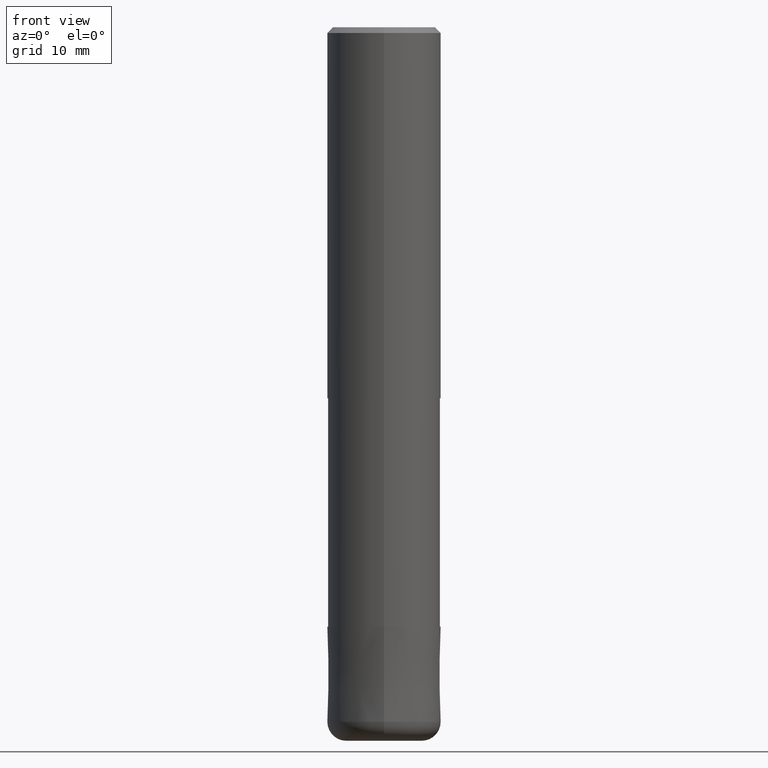
[diagram: clean part render]
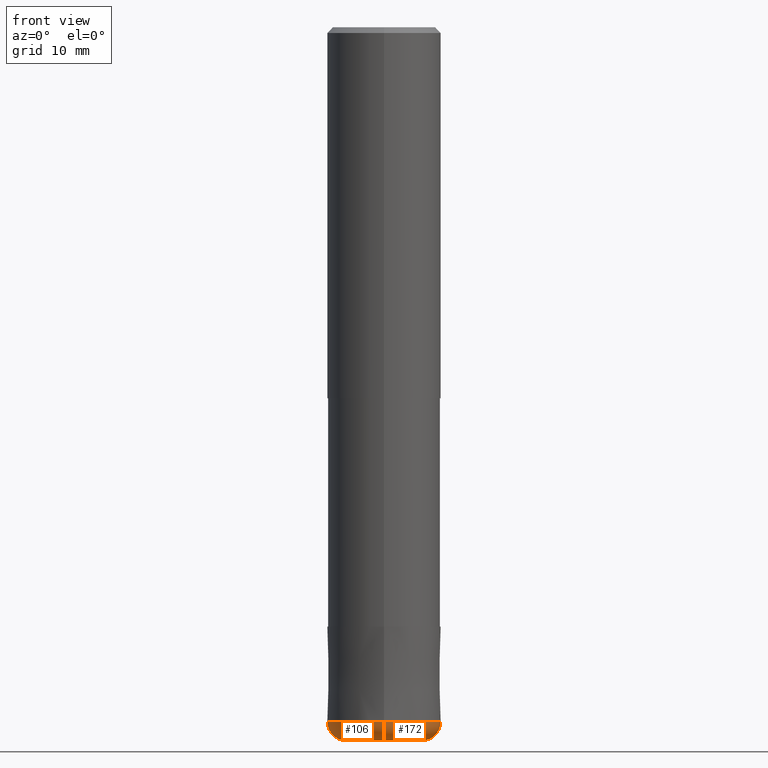
[diagram: same view with one multi-face feature highlighted, each face labeled with its STEP entity id]
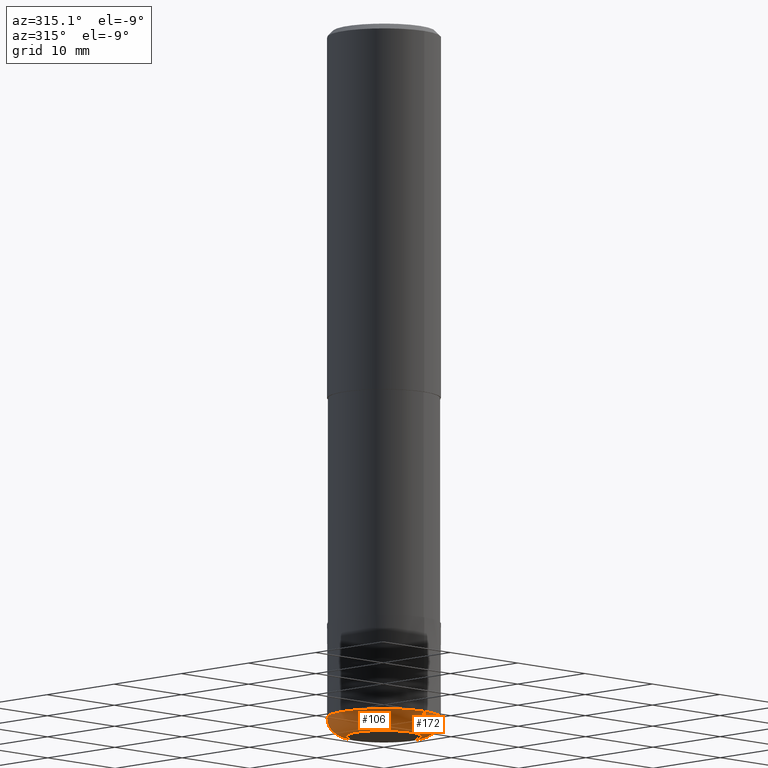
[diagram: same view with one multi-face feature highlighted, each face labeled with its STEP entity id]
A machine part, front view. The highlighted faces form ONE feature: a constant-radius fillet chain: 2 tangent blend faces with common blend radius 2 mm. The faces share edges in the B-rep.
A second angle (auxiliary view) of the same feature is appended — it is thin or edge-on in the first view.
Their STEP definitions:
[1] entity #172 (Torus):
#94=EDGE_CURVE('',#182,#202,#232,.T.);
#96=EDGE_CURVE('',#116,#174,#234,.T.);
#104=EDGE_CURVE('',#202,#174,#243,.T.);
#116=VERTEX_POINT('',#257);
#172=ADVANCED_FACE('',(#321),#322,.T.);
#174=VERTEX_POINT('',#324);
#182=VERTEX_POINT('',#334);
#202=VERTEX_POINT('',#355);
#208=EDGE_CURVE('',#116,#182,#361,.T.);
#232=CIRCLE('',#378,6.0);
#234=CIRCLE('',#381,4.0);
#243=CIRCLE('',#391,2.0);
#257=CARTESIAN_POINT('',(0.0,4.0,-75.0));
#321=FACE_OUTER_BOUND('',#489,.T.);
#322=TOROIDAL_SURFACE('',#490,4.0,2.0);
#324=CARTESIAN_POINT('',(4.89842541528951E-016,-4.0,-75.0));
#334=CARTESIAN_POINT('',(0.0,6.0,-73.0));
#355=CARTESIAN_POINT('',(7.34763812293427E-016,-6.0,-73.0));
#361=CIRCLE('',#538,2.0);
#378=AXIS2_PLACEMENT_3D('',#546,#547,#548);
#381=AXIS2_PLACEMENT_3D('',#549,#550,#551);
#391=AXIS2_PLACEMENT_3D('',#558,#559,#560);
#489=EDGE_LOOP('',(#666,#667,#668,#669));
#490=AXIS2_PLACEMENT_3D('',#670,#671,#672);
#538=AXIS2_PLACEMENT_3D('',#713,#714,#715);
#546=CARTESIAN_POINT('',(0.0,0.0,-73.0));
#547=DIRECTION('',(0.0,0.0,-1.0));
#548=DIRECTION('',(0.0,1.0,0.0));
#549=CARTESIAN_POINT('',(0.0,0.0,-75.0));
#550=DIRECTION('',(0.0,0.0,-1.0));
#551=DIRECTION('',(0.0,1.0,0.0));
#558=CARTESIAN_POINT('',(4.89842541528951E-016,-4.0,-73.0));
#559=DIRECTION('',(1.0,1.22460635382238E-016,0.0));
#560=DIRECTION('',(1.22460635382238E-016,-1.0,-0.0));
#666=ORIENTED_EDGE('',*,*,#104,.T.);
#667=ORIENTED_EDGE('',*,*,#96,.F.);
#668=ORIENTED_EDGE('',*,*,#208,.T.);
#669=ORIENTED_EDGE('',*,*,#94,.T.);
#670=CARTESIAN_POINT('',(0.0,0.0,-73.0));
#671=DIRECTION('',(0.0,0.0,-1.0));
#672=DIRECTION('',(0.0,-1.0,0.0));
#713=CARTESIAN_POINT('',(-4.89842541528951E-016,4.0,-73.0));
#714=DIRECTION('',(1.0,1.22460635382238E-016,0.0));
#715=DIRECTION('',(-1.22460635382238E-016,1.0,0.0));
[2] entity #106 (Torus):
#104=EDGE_CURVE('',#202,#174,#243,.T.);
#106=ADVANCED_FACE('',(#245),#246,.T.);
#116=VERTEX_POINT('',#257);
#174=VERTEX_POINT('',#324);
#182=VERTEX_POINT('',#334);
#184=EDGE_CURVE('',#202,#182,#336,.T.);
#188=EDGE_CURVE('',#174,#116,#340,.T.);
#202=VERTEX_POINT('',#355);
#208=EDGE_CURVE('',#116,#182,#361,.T.);
#243=CIRCLE('',#391,2.0);
#245=FACE_OUTER_BOUND('',#393,.T.);
#246=TOROIDAL_SURFACE('',#394,4.0,2.0);
#257=CARTESIAN_POINT('',(0.0,4.0,-75.0));
#324=CARTESIAN_POINT('',(4.89842541528951E-016,-4.0,-75.0));
#334=CARTESIAN_POINT('',(0.0,6.0,-73.0));
#336=CIRCLE('',#506,6.0);
#340=CIRCLE('',#511,4.0);
#355=CARTESIAN_POINT('',(7.34763812293427E-016,-6.0,-73.0));
#361=CIRCLE('',#538,2.0);
#391=AXIS2_PLACEMENT_3D('',#558,#559,#560);
#393=EDGE_LOOP('',(#562,#563,#564,#565));
#394=AXIS2_PLACEMENT_3D('',#566,#567,#568);
#506=AXIS2_PLACEMENT_3D('',#690,#691,#692);
#511=AXIS2_PLACEMENT_3D('',#693,#694,#695);
#538=AXIS2_PLACEMENT_3D('',#713,#714,#715);
#558=CARTESIAN_POINT('',(4.89842541528951E-016,-4.0,-73.0));
#559=DIRECTION('',(1.0,1.22460635382238E-016,0.0));
#560=DIRECTION('',(1.22460635382238E-016,-1.0,-0.0));
#562=ORIENTED_EDGE('',*,*,#104,.F.);
#563=ORIENTED_EDGE('',*,*,#184,.T.);
#564=ORIENTED_EDGE('',*,*,#208,.F.);
#565=ORIENTED_EDGE('',*,*,#188,.F.);
#566=CARTESIAN_POINT('',(0.0,0.0,-73.0));
#567=DIRECTION('',(0.0,0.0,-1.0));
#568=DIRECTION('',(0.0,-1.0,0.0));
#690=CARTESIAN_POINT('',(0.0,0.0,-73.0));
#691=DIRECTION('',(0.0,0.0,-1.0));
#692=DIRECTION('',(0.0,1.0,0.0));
#693=CARTESIAN_POINT('',(0.0,0.0,-75.0));
#694=DIRECTION('',(0.0,0.0,-1.0));
#695=DIRECTION('',(0.0,1.0,0.0));
#713=CARTESIAN_POINT('',(-4.89842541528951E-016,4.0,-73.0));
#714=DIRECTION('',(1.0,1.22460635382238E-016,0.0));
#715=DIRECTION('',(-1.22460635382238E-016,1.0,0.0));